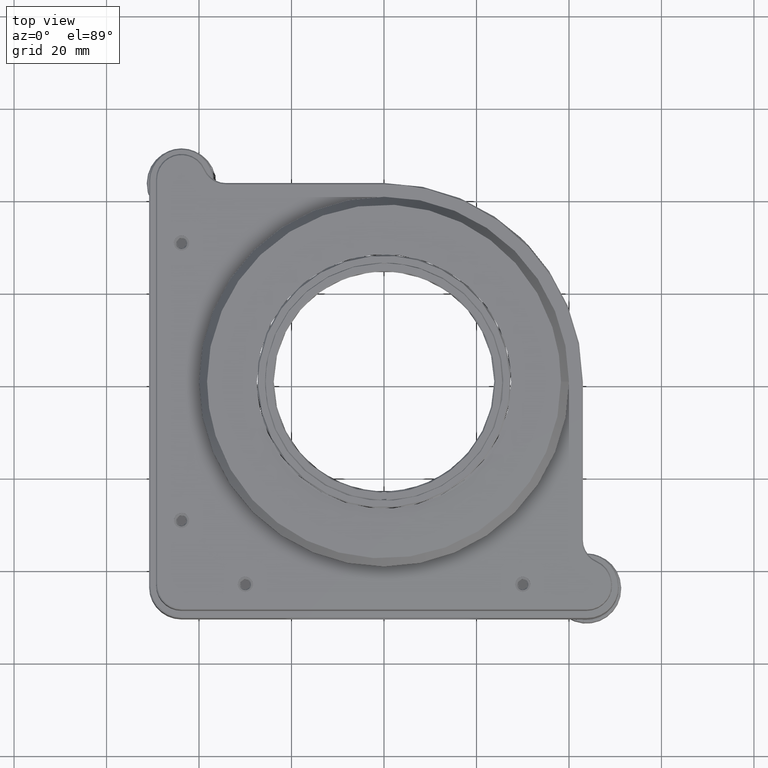
[diagram: clean part render]
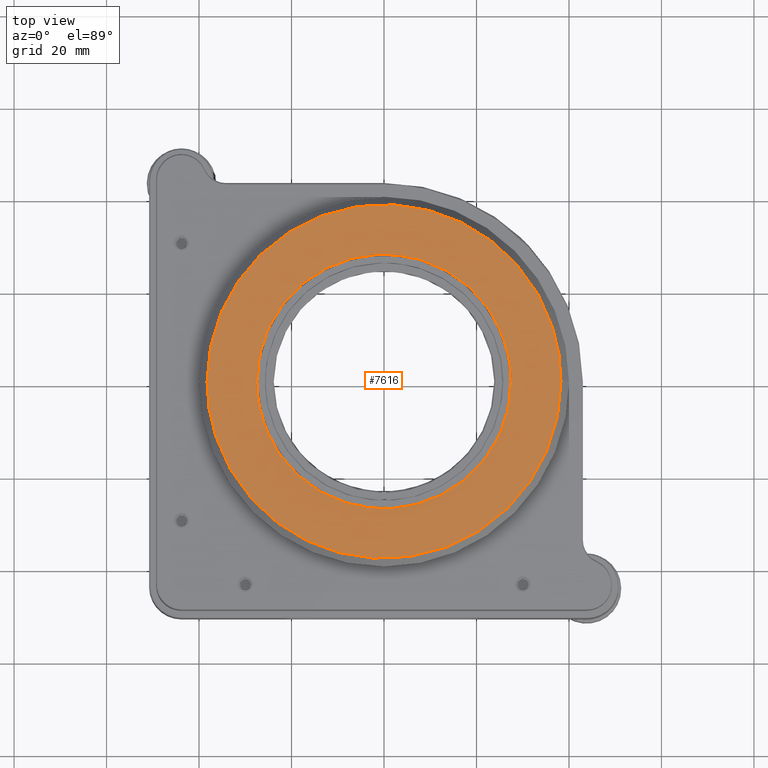
[diagram: same view with one face highlighted and labeled with its STEP entity id]
A machine part, top view. The second image highlights one B-rep face of the part: STEP entity #7616.
In plain terms, the highlighted planar face has unit normal (0, 0, 1).
Its self-contained STEP definition (entity closure, byte-faithful):
#948 = CARTESIAN_POINT ( 'NONE',  ( -27.50000000000031619, 3.361911526044632413E-13, 30.69606781186547906 ) ) ;
#1498 = EDGE_CURVE ( 'NONE', #15014, #26468, #9831, .T. ) ;
#1906 = CARTESIAN_POINT ( 'NONE',  ( -45.92273903091761866, -45.92273903091695786, 30.69606781186547906 ) ) ;
#2652 = CARTESIAN_POINT ( 'NONE',  ( -27.50000000000003553, -27.49999999999965894, 30.69606781186548261 ) ) ;
#4143 = CARTESIAN_POINT ( 'NONE',  ( -38.26794919243140214, 3.372156952276962056E-13, 30.69606781186548616 ) ) ;
#5545 = CARTESIAN_POINT ( 'NONE',  ( -38.26794919243099713, -38.26794919243074133, 30.69606781186548616 ) ) ;
#6211 = CARTESIAN_POINT ( 'NONE',  ( 38.26794919243076265, 3.465886395253850629E-13, 30.69606781186548616 ) ) ;
#7219 = CARTESIAN_POINT ( 'NONE',  ( -38.26794919243179294, 38.26794919243140924, 30.69606781186548261 ) ) ;
#7411 = CARTESIAN_POINT ( 'NONE',  ( 38.26794919243076265, 3.465886395253850629E-13, 30.69606781186548616 ) ) ;
#7616 = ADVANCED_FACE ( 'NONE', ( #22603, #37409 ), #19634, .T. ) ;
#8461 =( BOUNDED_CURVE ( )  B_SPLINE_CURVE ( 2, ( #23489, #35515, #38677, #5545, #32159 ),
 .UNSPECIFIED., .F., .T. ) 
 B_SPLINE_CURVE_WITH_KNOTS ( ( 3, 2, 3 ),
 ( 4.554381102761375119E-18, 0.05980927275008989658, 0.1196185455001797793 ),
 .UNSPECIFIED. ) 
 CURVE ( )  GEOMETRIC_REPRESENTATION_ITEM ( )  RATIONAL_B_SPLINE_CURVE ( ( 0.9999999999999978906, 0.7071067811865496822, 1.000000000000000000, 0.7071067811865496822, 0.9999999999999978906 ) ) 
 REPRESENTATION_ITEM ( '' )  );
#9831 =( BOUNDED_CURVE ( )  B_SPLINE_CURVE ( 2, ( #10938, #17218, #29639, #2652, #11322 ),
 .UNSPECIFIED., .F., .T. ) 
 B_SPLINE_CURVE_WITH_KNOTS ( ( 3, 2, 3 ),
 ( 1.636427911202439408E-18, 0.04297996196129535290, 0.08595992392259070580 ),
 .UNSPECIFIED. ) 
 CURVE ( )  GEOMETRIC_REPRESENTATION_ITEM ( )  RATIONAL_B_SPLINE_CURVE ( ( 0.9999999999999978906, 0.7071067811865495711, 1.000000000000000000, 0.7071067811865495711, 0.9999999999999978906 ) ) 
 REPRESENTATION_ITEM ( '' )  );
#9918 = CARTESIAN_POINT ( 'NONE',  ( 27.49999999999967670, 3.429267099997737501E-13, 30.69606781186547906 ) ) ;
#10398 = DIRECTION ( 'NONE',  ( 1.000000000000000000, 0.000000000000000000, 0.000000000000000000 ) ) ;
#10938 = CARTESIAN_POINT ( 'NONE',  ( 27.49999999999967670, 3.429267099997737501E-13, 30.69606781186547906 ) ) ;
#11322 = CARTESIAN_POINT ( 'NONE',  ( -27.50000000000031619, 3.361911526044632413E-13, 30.69606781186547906 ) ) ;
#11896 = ORIENTED_EDGE ( 'NONE', *, *, #37684, .T. ) ;
#12667 =( BOUNDED_CURVE ( )  B_SPLINE_CURVE ( 2, ( #948, #19448, #13146, #34245, #25186 ),
 .UNSPECIFIED., .F., .F. ) 
 B_SPLINE_CURVE_WITH_KNOTS ( ( 3, 2, 3 ),
 ( 1.062224741880378223E-18, 0.04297996196129537372, 0.08595992392259074744 ),
 .UNSPECIFIED. ) 
 CURVE ( )  GEOMETRIC_REPRESENTATION_ITEM ( )  RATIONAL_B_SPLINE_CURVE ( ( 0.9999999999999978906, 0.7071067811865496822, 1.000000000000000000, 0.7071067811865496822, 0.9999999999999978906 ) ) 
 REPRESENTATION_ITEM ( '' )  );
#12723 = CARTESIAN_POINT ( 'NONE',  ( -38.26794919243140214, 3.372156952276962056E-13, 30.69606781186548616 ) ) ;
#13146 = CARTESIAN_POINT ( 'NONE',  ( -3.236523222652222183E-13, 27.50000000000033751, 30.69606781186547906 ) ) ;
#14296 = ORIENTED_EDGE ( 'NONE', *, *, #16212, .F. ) ;
#14363 = EDGE_CURVE ( 'NONE', #18218, #37344, #8461, .T. ) ;
#15014 = VERTEX_POINT ( 'NONE', #9918 ) ;
#15364 = ORIENTED_EDGE ( 'NONE', *, *, #1498, .T. ) ;
#16212 = EDGE_CURVE ( 'NONE', #37344, #18218, #32640, .T. ) ;
#16485 = DIRECTION ( 'NONE',  ( 0.000000000000000000, 0.000000000000000000, 1.000000000000000000 ) ) ;
#17218 = CARTESIAN_POINT ( 'NONE',  ( 27.49999999999941025, -27.49999999999965539, 30.69606781186548261 ) ) ;
#18218 = VERTEX_POINT ( 'NONE', #6211 ) ;
#19448 = CARTESIAN_POINT ( 'NONE',  ( -27.50000000000003908, 27.50000000000033751, 30.69606781186547551 ) ) ;
#19634 = PLANE ( 'NONE',  #31751 ) ;
#21299 = EDGE_LOOP ( 'NONE', ( #33700, #14296 ) ) ;
#22603 = FACE_OUTER_BOUND ( 'NONE', #21299, .T. ) ;
#23489 = CARTESIAN_POINT ( 'NONE',  ( 38.26794919243076265, 3.465886395253850629E-13, 30.69606781186548616 ) ) ;
#24759 = CARTESIAN_POINT ( 'NONE',  ( -3.249710157164114430E-13, 38.26794919243141635, 30.69606781186548616 ) ) ;
#25186 = CARTESIAN_POINT ( 'NONE',  ( 27.49999999999967670, 3.429267099997737501E-13, 30.69606781186547906 ) ) ;
#26468 = VERTEX_POINT ( 'NONE', #30510 ) ;
#27887 = EDGE_LOOP ( 'NONE', ( #11896, #15364 ) ) ;
#29639 = CARTESIAN_POINT ( 'NONE',  ( -3.169167648699117599E-13, -27.49999999999965539, 30.69606781186547906 ) ) ;
#30510 = CARTESIAN_POINT ( 'NONE',  ( -27.50000000000031619, 3.361911526044632413E-13, 30.69606781186547906 ) ) ;
#31751 = AXIS2_PLACEMENT_3D ( 'NONE', #1906, #16485, #10398 ) ;
#32159 = CARTESIAN_POINT ( 'NONE',  ( -38.26794919243140214, 3.372156952276962056E-13, 30.69606781186548616 ) ) ;
#32640 =( BOUNDED_CURVE ( )  B_SPLINE_CURVE ( 2, ( #12723, #7219, #24759, #36792, #7411 ),
 .UNSPECIFIED., .F., .T. ) 
 B_SPLINE_CURVE_WITH_KNOTS ( ( 3, 2, 3 ),
 ( 4.930380657631323236E-32, 0.05980927275008990351, 0.1196185455001798070 ),
 .UNSPECIFIED. ) 
 CURVE ( )  GEOMETRIC_REPRESENTATION_ITEM ( )  RATIONAL_B_SPLINE_CURVE ( ( 1.000000000000001998, 0.7071067811865453523, 1.000000000000000000, 0.7071067811865496822, 0.9999999999999978906 ) ) 
 REPRESENTATION_ITEM ( '' )  );
#33700 = ORIENTED_EDGE ( 'NONE', *, *, #14363, .F. ) ;
#34245 = CARTESIAN_POINT ( 'NONE',  ( 27.49999999999939604, 27.50000000000034461, 30.69606781186547551 ) ) ;
#35515 = CARTESIAN_POINT ( 'NONE',  ( 38.26794919243037185, -38.26794919243073423, 30.69606781186548616 ) ) ;
#36792 = CARTESIAN_POINT ( 'NONE',  ( 38.26794919243035764, 38.26794919243142346, 30.69606781186548616 ) ) ;
#37344 = VERTEX_POINT ( 'NONE', #4143 ) ;
#37409 = FACE_BOUND ( 'NONE', #27887, .T. ) ;
#37684 = EDGE_CURVE ( 'NONE', #26468, #15014, #12667, .T. ) ;
#38677 = CARTESIAN_POINT ( 'NONE',  ( -3.155980714187225353E-13, -38.26794919243074133, 30.69606781186548616 ) ) ;